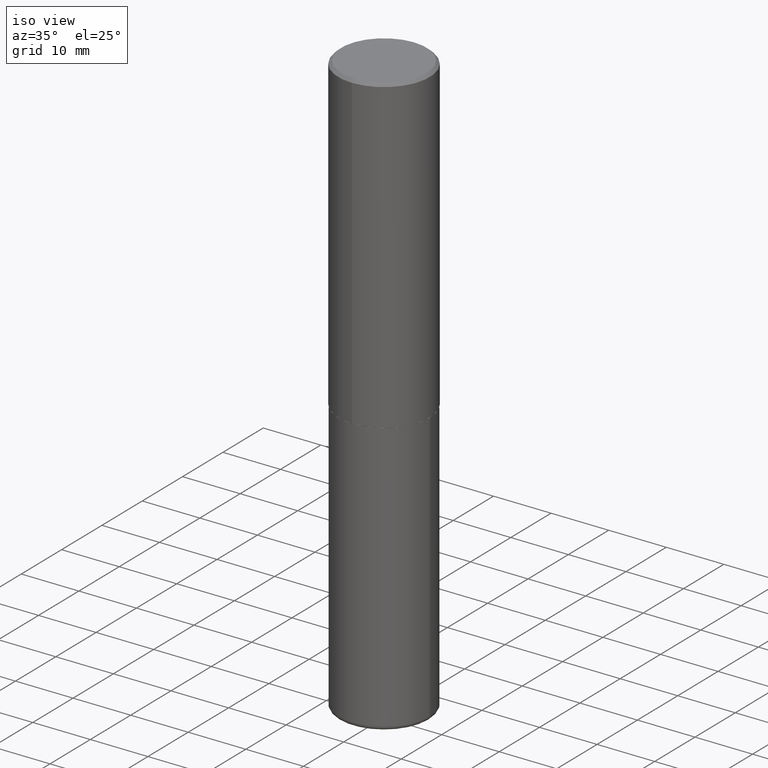
[diagram: clean part render]
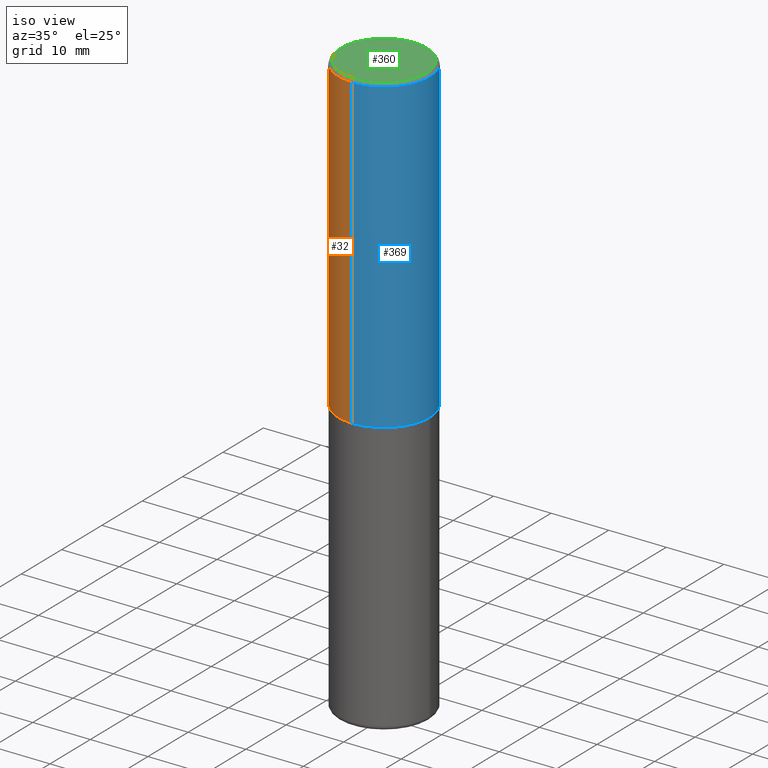
[diagram: same view with three faces highlighted in distinct colors, each labeled with its STEP entity id]
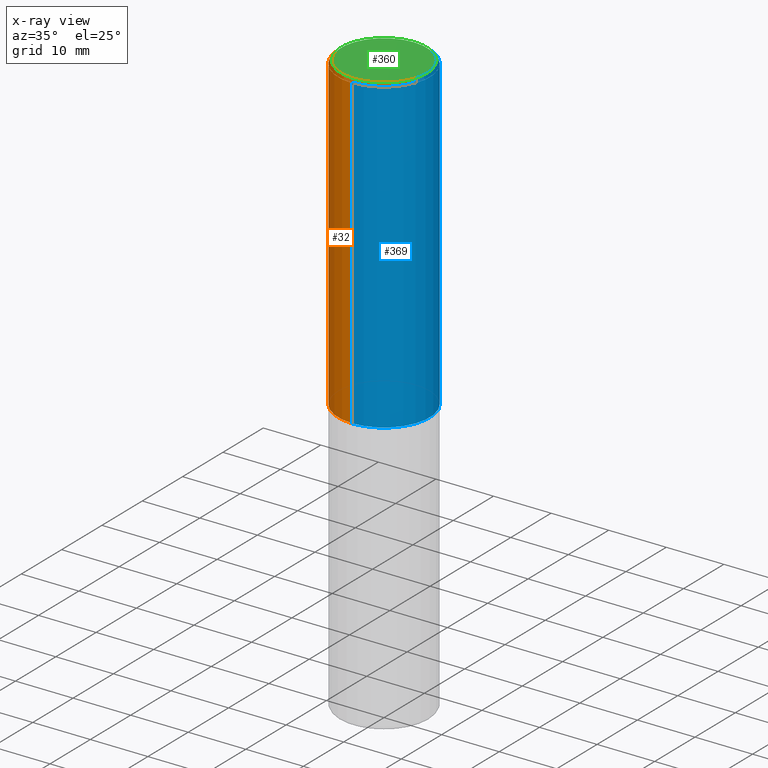
[diagram: x-ray of the same camera — body ghosted, the three highlighted faces saturated]
A machine part, iso view with three faces highlighted in distinct colors.
The next image is the same camera in x-ray (body ghosted, the three faces saturated) — at least one of them is partly hidden behind the body in this view.
Their STEP definitions:

[orange] entity #32 — the highlighted cylindrical surface (partial cylindrical patch) has radius 7.9375 mm, axis along (-0, 0, 1).
#1 = AXIS2_PLACEMENT_3D ( 'NONE', #8, #132, #392 ) ;
#8 = CARTESIAN_POINT ( 'NONE',  ( 4.889704863452922148E-31, -6.984728044299695791E-17, -0.02000000000000006981 ) ) ;
#13 = VERTEX_POINT ( 'NONE', #294 ) ;
#14 = EDGE_CURVE ( 'NONE', #135, #233, #323, .T. ) ;
#32 = ADVANCED_FACE ( 'NONE', ( #397 ), #298, .T. ) ;
#40 = ORIENTED_EDGE ( 'NONE', *, *, #14, .T. ) ;
#42 = ORIENTED_EDGE ( 'NONE', *, *, #163, .T. ) ;
#43 = VECTOR ( 'NONE', #306, 39.37007874015748143 ) ;
#44 = EDGE_LOOP ( 'NONE', ( #380, #40, #42, #314 ) ) ;
#46 = CARTESIAN_POINT ( 'NONE',  ( 2.220446049250313475E-15, 0.3125000000000001665, -1.091363756921824478E-15 ) ) ;
#55 = VERTEX_POINT ( 'NONE', #238 ) ;
#66 = EDGE_CURVE ( 'NONE', #135, #13, #231, .T. ) ;
#74 = DIRECTION ( 'NONE',  ( -6.982962677686265922E-15, -1.000000000000000000, 3.496765431890253764E-15 ) ) ;
#85 = CARTESIAN_POINT ( 'NONE',  ( -2.182175836776959136E-15, -0.3125000000000001665, 1.091363756921824478E-15 ) ) ;
#88 = EDGE_CURVE ( 'NONE', #13, #55, #363, .T. ) ;
#108 = CARTESIAN_POINT ( 'NONE',  ( 0.000000000000000000, 0.000000000000000000, 0.000000000000000000 ) ) ;
#122 = CARTESIAN_POINT ( 'NONE',  ( 2.220446049250340297E-15, 0.3124999999999928391, -2.124000000000000554 ) ) ;
#132 = DIRECTION ( 'NONE',  ( -2.444852431726452894E-29, 3.492364022149836358E-15, 1.000000000000000000 ) ) ;
#135 = VERTEX_POINT ( 'NONE', #122 ) ;
#139 = AXIS2_PLACEMENT_3D ( 'NONE', #108, #141, #328 ) ;
#141 = DIRECTION ( 'NONE',  ( -2.444852431726452894E-29, 3.492364022149836358E-15, 1.000000000000000000 ) ) ;
#158 = VECTOR ( 'NONE', #268, 39.37007874015748143 ) ;
#163 = EDGE_CURVE ( 'NONE', #233, #55, #184, .T. ) ;
#184 = LINE ( 'NONE', #85, #43 ) ;
#231 = LINE ( 'NONE', #46, #158 ) ;
#233 = VERTEX_POINT ( 'NONE', #413 ) ;
#238 = CARTESIAN_POINT ( 'NONE',  ( -2.143905624303602824E-15, -0.3125000000000000555, -0.01999999999999897693 ) ) ;
#268 = DIRECTION ( 'NONE',  ( -2.444852431726452614E-29, 3.492364022149836358E-15, 1.000000000000000000 ) ) ;
#294 = CARTESIAN_POINT ( 'NONE',  ( 2.182175836776958741E-15, 0.3124999999999999445, -0.02000000000000116268 ) ) ;
#298 = CYLINDRICAL_SURFACE ( 'NONE', #139, 0.3125000000000001665 ) ;
#306 = DIRECTION ( 'NONE',  ( -2.444852431726452614E-29, 3.492364022149836358E-15, 1.000000000000000000 ) ) ;
#314 = ORIENTED_EDGE ( 'NONE', *, *, #88, .F. ) ;
#323 = CIRCLE ( 'NONE', #379, 0.3125000000000002776 ) ;
#328 = DIRECTION ( 'NONE',  ( -6.982962677686265133E-15, -1.000000000000000000, 3.492364022149836358E-15 ) ) ;
#361 = CARTESIAN_POINT ( 'NONE',  ( 5.192866564986985411E-29, -7.417781183046251262E-15, -2.123999999999999666 ) ) ;
#363 = CIRCLE ( 'NONE', #1, 0.3125000000000000000 ) ;
#379 = AXIS2_PLACEMENT_3D ( 'NONE', #361, #393, #74 ) ;
#380 = ORIENTED_EDGE ( 'NONE', *, *, #66, .F. ) ;
#392 = DIRECTION ( 'NONE',  ( -6.982962677686265133E-15, -1.000000000000000000, 3.496765431890256920E-15 ) ) ;
#393 = DIRECTION ( 'NONE',  ( -2.444852431726452894E-29, 3.492364022149836358E-15, 1.000000000000000000 ) ) ;
#397 = FACE_OUTER_BOUND ( 'NONE', #44, .T. ) ;
#413 = CARTESIAN_POINT ( 'NONE',  ( -2.182175836776908254E-15, -0.3125000000000077161, -2.123999999999998334 ) ) ;

[blue] entity #369 — the highlighted cylindrical surface (partial cylindrical patch) has radius 7.9375 mm, axis along (-0, 0, 1).
#2 = AXIS2_PLACEMENT_3D ( 'NONE', #366, #73, #293 ) ;
#13 = VERTEX_POINT ( 'NONE', #294 ) ;
#37 = CIRCLE ( 'NONE', #176, 0.3125000000000000000 ) ;
#43 = VECTOR ( 'NONE', #306, 39.37007874015748143 ) ;
#46 = CARTESIAN_POINT ( 'NONE',  ( 2.220446049250313475E-15, 0.3125000000000001665, -1.091363756921824478E-15 ) ) ;
#51 = DIRECTION ( 'NONE',  ( -6.982962677686265133E-15, -1.000000000000000000, 3.496765431890256920E-15 ) ) ;
#55 = VERTEX_POINT ( 'NONE', #238 ) ;
#66 = EDGE_CURVE ( 'NONE', #135, #13, #231, .T. ) ;
#68 = CYLINDRICAL_SURFACE ( 'NONE', #93, 0.3125000000000001665 ) ;
#73 = DIRECTION ( 'NONE',  ( -2.444852431726452894E-29, 3.492364022149836358E-15, 1.000000000000000000 ) ) ;
#85 = CARTESIAN_POINT ( 'NONE',  ( -2.182175836776959136E-15, -0.3125000000000001665, 1.091363756921824478E-15 ) ) ;
#92 = DIRECTION ( 'NONE',  ( -2.444852431726452894E-29, 3.492364022149836358E-15, 1.000000000000000000 ) ) ;
#93 = AXIS2_PLACEMENT_3D ( 'NONE', #355, #107, #270 ) ;
#107 = DIRECTION ( 'NONE',  ( -2.444852431726452894E-29, 3.492364022149836358E-15, 1.000000000000000000 ) ) ;
#122 = CARTESIAN_POINT ( 'NONE',  ( 2.220446049250340297E-15, 0.3124999999999928391, -2.124000000000000554 ) ) ;
#135 = VERTEX_POINT ( 'NONE', #122 ) ;
#144 = CARTESIAN_POINT ( 'NONE',  ( 4.889704863452922148E-31, -6.984728044299695791E-17, -0.02000000000000006981 ) ) ;
#156 = ORIENTED_EDGE ( 'NONE', *, *, #163, .F. ) ;
#157 = EDGE_CURVE ( 'NONE', #55, #13, #37, .T. ) ;
#158 = VECTOR ( 'NONE', #268, 39.37007874015748143 ) ;
#163 = EDGE_CURVE ( 'NONE', #233, #55, #184, .T. ) ;
#176 = AXIS2_PLACEMENT_3D ( 'NONE', #144, #92, #51 ) ;
#184 = LINE ( 'NONE', #85, #43 ) ;
#203 = ORIENTED_EDGE ( 'NONE', *, *, #66, .T. ) ;
#222 = EDGE_LOOP ( 'NONE', ( #388, #203, #289, #156 ) ) ;
#231 = LINE ( 'NONE', #46, #158 ) ;
#233 = VERTEX_POINT ( 'NONE', #413 ) ;
#238 = CARTESIAN_POINT ( 'NONE',  ( -2.143905624303602824E-15, -0.3125000000000000555, -0.01999999999999897693 ) ) ;
#268 = DIRECTION ( 'NONE',  ( -2.444852431726452614E-29, 3.492364022149836358E-15, 1.000000000000000000 ) ) ;
#270 = DIRECTION ( 'NONE',  ( -6.982962677686265133E-15, -1.000000000000000000, 3.492364022149836358E-15 ) ) ;
#289 = ORIENTED_EDGE ( 'NONE', *, *, #157, .F. ) ;
#293 = DIRECTION ( 'NONE',  ( -6.982962677686265922E-15, -1.000000000000000000, 3.496765431890253764E-15 ) ) ;
#294 = CARTESIAN_POINT ( 'NONE',  ( 2.182175836776958741E-15, 0.3124999999999999445, -0.02000000000000116268 ) ) ;
#295 = CIRCLE ( 'NONE', #2, 0.3125000000000002776 ) ;
#306 = DIRECTION ( 'NONE',  ( -2.444852431726452614E-29, 3.492364022149836358E-15, 1.000000000000000000 ) ) ;
#309 = EDGE_CURVE ( 'NONE', #233, #135, #295, .T. ) ;
#355 = CARTESIAN_POINT ( 'NONE',  ( 0.000000000000000000, 0.000000000000000000, 0.000000000000000000 ) ) ;
#362 = FACE_OUTER_BOUND ( 'NONE', #222, .T. ) ;
#366 = CARTESIAN_POINT ( 'NONE',  ( 5.192866564986985411E-29, -7.417781183046251262E-15, -2.123999999999999666 ) ) ;
#369 = ADVANCED_FACE ( 'NONE', ( #362 ), #68, .T. ) ;
#388 = ORIENTED_EDGE ( 'NONE', *, *, #309, .T. ) ;
#413 = CARTESIAN_POINT ( 'NONE',  ( -2.182175836776908254E-15, -0.3125000000000077161, -2.123999999999998334 ) ) ;

[green] entity #360 — the highlighted planar face has unit normal (0, -0, -1).
#4 = CARTESIAN_POINT ( 'NONE',  ( -2.150299018297948745E-46, 3.071607443834507134E-32, 8.795209847407834549E-18 ) ) ;
#9 = AXIS2_PLACEMENT_3D ( 'NONE', #243, #313, #208 ) ;
#96 = VERTEX_POINT ( 'NONE', #106 ) ;
#98 = CIRCLE ( 'NONE', #324, 0.2924999999999999822 ) ;
#100 = PLANE ( 'NONE',  #111 ) ;
#106 = CARTESIAN_POINT ( 'NONE',  ( -2.075300644325887493E-15, -0.2924999999999999822, 1.030311686326234990E-15 ) ) ;
#111 = AXIS2_PLACEMENT_3D ( 'NONE', #232, #226, #137 ) ;
#129 = EDGE_CURVE ( 'NONE', #96, #310, #318, .T. ) ;
#130 = DIRECTION ( 'NONE',  ( -6.982962677686265133E-15, -1.000000000000000000, 3.492364022149836753E-15 ) ) ;
#137 = DIRECTION ( 'NONE',  ( 6.982962677686265922E-15, 1.000000000000000000, -3.492364022149836358E-15 ) ) ;
#185 = ORIENTED_EDGE ( 'NONE', *, *, #398, .T. ) ;
#206 = EDGE_LOOP ( 'NONE', ( #185, #336 ) ) ;
#208 = DIRECTION ( 'NONE',  ( -6.982962677686265133E-15, -1.000000000000000000, 3.492364022149836753E-15 ) ) ;
#226 = DIRECTION ( 'NONE',  ( 2.444852431726452333E-29, -3.492364022149836358E-15, -1.000000000000000000 ) ) ;
#232 = CARTESIAN_POINT ( 'NONE',  ( 2.042516583223232540E-15, 0.2924999999999999822, -1.017118871555123169E-15 ) ) ;
#237 = CARTESIAN_POINT ( 'NONE',  ( 2.112346210000095838E-15, 0.2924999999999999822, -1.012721266631419361E-15 ) ) ;
#243 = CARTESIAN_POINT ( 'NONE',  ( -2.150299018297948745E-46, 3.071607443834507134E-32, 8.795209847407834549E-18 ) ) ;
#267 = FACE_OUTER_BOUND ( 'NONE', #206, .T. ) ;
#310 = VERTEX_POINT ( 'NONE', #237 ) ;
#313 = DIRECTION ( 'NONE',  ( -2.444852431726452894E-29, 3.492364022149836358E-15, 1.000000000000000000 ) ) ;
#318 = CIRCLE ( 'NONE', #9, 0.2924999999999999822 ) ;
#324 = AXIS2_PLACEMENT_3D ( 'NONE', #4, #390, #130 ) ;
#336 = ORIENTED_EDGE ( 'NONE', *, *, #129, .T. ) ;
#360 = ADVANCED_FACE ( 'NONE', ( #267 ), #100, .F. ) ;
#390 = DIRECTION ( 'NONE',  ( -2.444852431726452894E-29, 3.492364022149836358E-15, 1.000000000000000000 ) ) ;
#398 = EDGE_CURVE ( 'NONE', #310, #96, #98, .T. ) ;